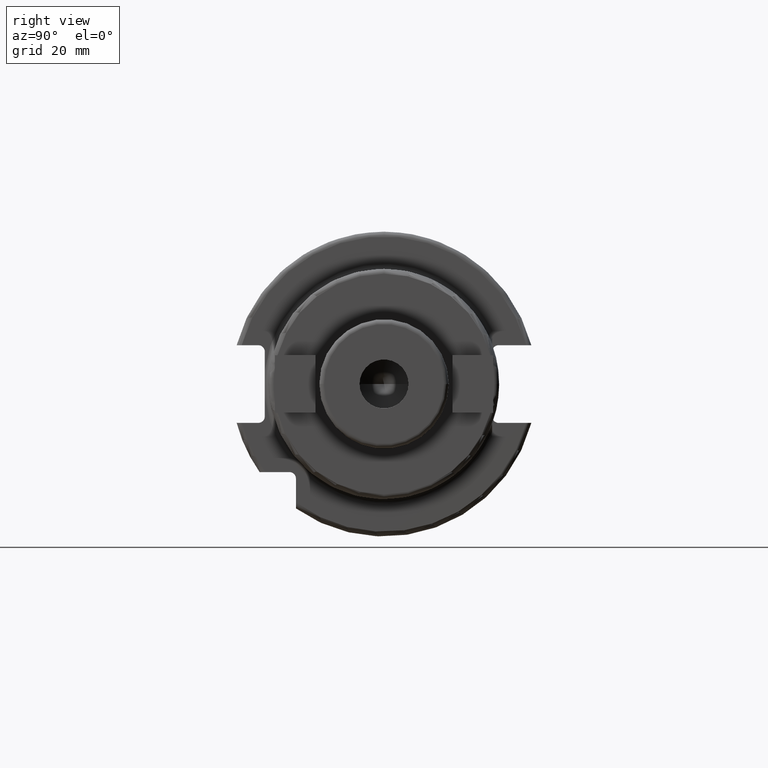
[diagram: clean part render]
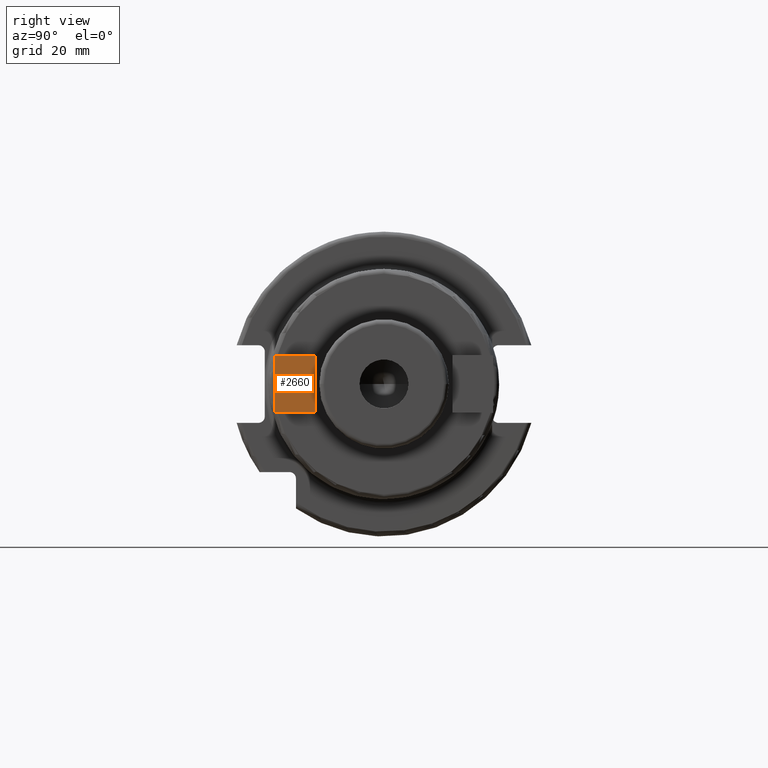
[diagram: same view with one face highlighted and labeled with its STEP entity id]
A machine part, right view. The second image highlights one B-rep face of the part: STEP entity #2660.
In plain terms, the highlighted planar face has unit normal (1, 0, 0).
Its self-contained STEP definition (entity closure, byte-faithful):
#585=DIRECTION('',(0.E0,-1.E0,0.E0));
#586=VECTOR('',#585,8.5E0);
#587=CARTESIAN_POINT('',(4.13E1,-1.425E1,6.E0));
#588=LINE('',#587,#586);
#589=DIRECTION('',(0.E0,0.E0,1.E0));
#590=VECTOR('',#589,1.2E1);
#591=CARTESIAN_POINT('',(4.13E1,-1.425E1,-6.E0));
#592=LINE('',#591,#590);
#593=DIRECTION('',(0.E0,1.E0,0.E0));
#594=VECTOR('',#593,8.5E0);
#595=CARTESIAN_POINT('',(4.13E1,-2.275E1,-6.E0));
#596=LINE('',#595,#594);
#597=DIRECTION('',(0.E0,0.E0,-1.E0));
#598=VECTOR('',#597,1.2E1);
#599=CARTESIAN_POINT('',(4.13E1,-2.275E1,6.E0));
#600=LINE('',#599,#598);
#1796=CARTESIAN_POINT('',(4.13E1,-1.425E1,6.E0));
#1797=CARTESIAN_POINT('',(4.13E1,-2.275E1,6.E0));
#1798=VERTEX_POINT('',#1796);
#1799=VERTEX_POINT('',#1797);
#1800=CARTESIAN_POINT('',(4.13E1,-2.275E1,-6.E0));
#1801=VERTEX_POINT('',#1800);
#1802=CARTESIAN_POINT('',(4.13E1,-1.425E1,-6.E0));
#1803=VERTEX_POINT('',#1802);
#2645=CARTESIAN_POINT('',(4.13E1,0.E0,0.E0));
#2646=DIRECTION('',(1.E0,0.E0,0.E0));
#2647=DIRECTION('',(0.E0,0.E0,-1.E0));
#2648=AXIS2_PLACEMENT_3D('',#2645,#2646,#2647);
#2649=PLANE('',#2648);
#2651=ORIENTED_EDGE('',*,*,#2650,.F.);
#2653=ORIENTED_EDGE('',*,*,#2652,.F.);
#2655=ORIENTED_EDGE('',*,*,#2654,.F.);
#2657=ORIENTED_EDGE('',*,*,#2656,.F.);
#2658=EDGE_LOOP('',(#2651,#2653,#2655,#2657));
#2659=FACE_OUTER_BOUND('',#2658,.F.);
#2660=ADVANCED_FACE('',(#2659),#2649,.T.);
#2650=EDGE_CURVE('',#1798,#1799,#588,.T.);
#2652=EDGE_CURVE('',#1803,#1798,#592,.T.);
#2654=EDGE_CURVE('',#1801,#1803,#596,.T.);
#2656=EDGE_CURVE('',#1799,#1801,#600,.T.);